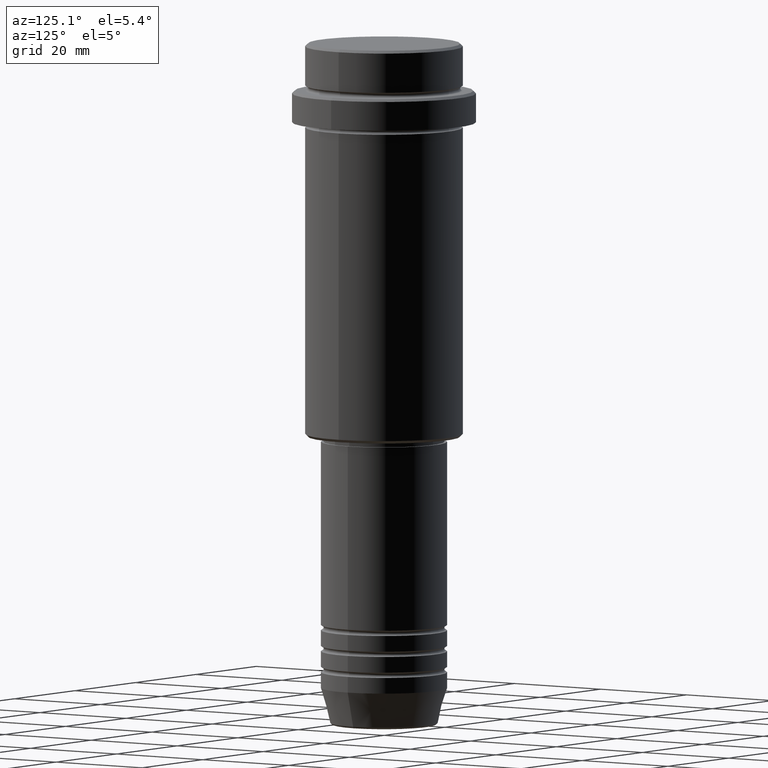
[diagram: clean part render]
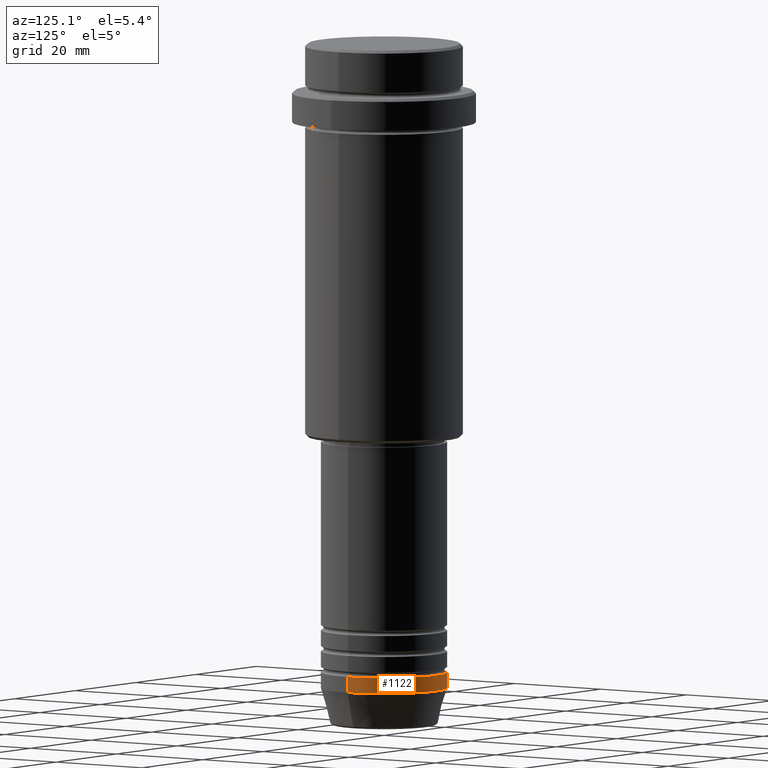
[diagram: same view with one face highlighted and labeled with its STEP entity id]
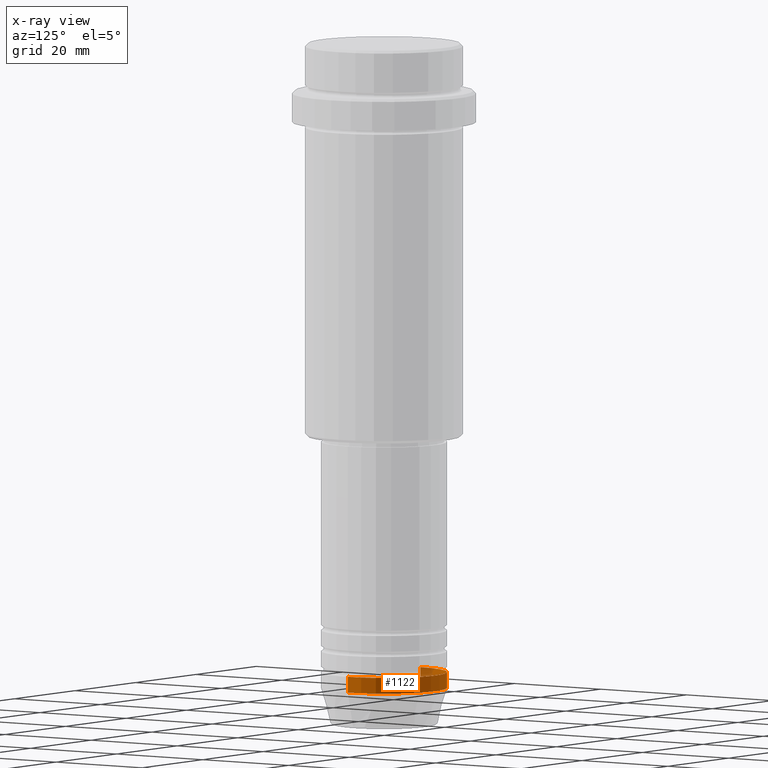
[diagram: x-ray of the same camera — body ghosted, the highlighted face saturated]
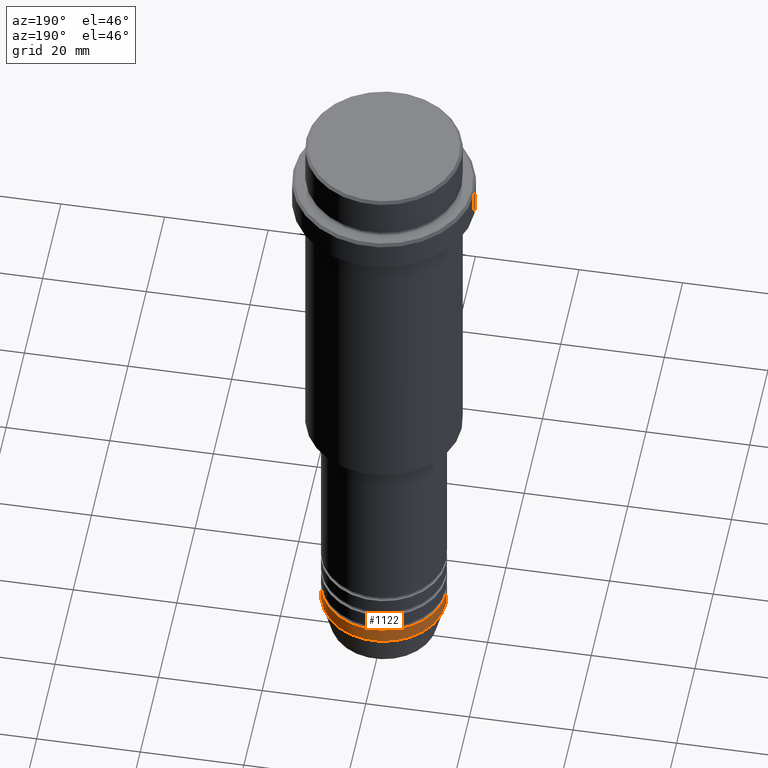
[diagram: same view with one face highlighted and labeled with its STEP entity id]
A machine part, auxiliary view. The second image highlights one B-rep face of the part: STEP entity #1122.
The next image is the same camera in x-ray: the body ghosted, the highlighted face saturated — about 6% of this face is hidden behind the body in this view.
A second angle (auxiliary view) of the same face is appended — the face is thin or edge-on in the first view.
In plain terms, the highlighted cylindrical surface (partial cylindrical patch) has radius 12 mm, axis along (-0, -0, 1).
Its self-contained STEP definition (entity closure, byte-faithful):
#69 = AXIS2_PLACEMENT_3D ( 'NONE', #941, #166, #604 ) ;
#87 = ORIENTED_EDGE ( 'NONE', *, *, #403, .F. ) ;
#95 = DIRECTION ( 'NONE',  ( -0.000000000000000000, -0.000000000000000000, 1.000000000000000000 ) ) ;
#152 = ORIENTED_EDGE ( 'NONE', *, *, #171, .T. ) ;
#164 = DIRECTION ( 'NONE',  ( 1.000000000000000000, 0.000000000000000000, 0.000000000000000000 ) ) ;
#166 = DIRECTION ( 'NONE',  ( -0.000000000000000000, -0.000000000000000000, 1.000000000000000000 ) ) ;
#171 = EDGE_CURVE ( 'NONE', #1378, #384, #495, .T. ) ;
#194 = ORIENTED_EDGE ( 'NONE', *, *, #1333, .F. ) ;
#296 = DIRECTION ( 'NONE',  ( -0.000000000000000000, -0.000000000000000000, 1.000000000000000000 ) ) ;
#384 = VERTEX_POINT ( 'NONE', #1394 ) ;
#396 = CARTESIAN_POINT ( 'NONE',  ( 12.00000000000000000, 0.000000000000000000, 0.000000000000000000 ) ) ;
#403 = EDGE_CURVE ( 'NONE', #1378, #532, #496, .T. ) ;
#455 = DIRECTION ( 'NONE',  ( -0.000000000000000000, -0.000000000000000000, 1.000000000000000000 ) ) ;
#470 = CARTESIAN_POINT ( 'NONE',  ( 0.000000000000000000, 0.000000000000000000, 0.000000000000000000 ) ) ;
#481 = CARTESIAN_POINT ( 'NONE',  ( 12.00000000000000000, 0.000000000000000000, -123.0000000000000000 ) ) ;
#495 = CIRCLE ( 'NONE', #69, 12.00000000000000000 ) ;
#496 = LINE ( 'NONE', #396, #961 ) ;
#497 = FACE_OUTER_BOUND ( 'NONE', #1135, .T. ) ;
#532 = VERTEX_POINT ( 'NONE', #579 ) ;
#579 = CARTESIAN_POINT ( 'NONE',  ( 12.00000000000000000, 0.000000000000000000, -120.0000000000000000 ) ) ;
#589 = DIRECTION ( 'NONE',  ( -0.000000000000000000, -0.000000000000000000, 1.000000000000000000 ) ) ;
#604 = DIRECTION ( 'NONE',  ( 1.000000000000000000, 0.000000000000000000, 0.000000000000000000 ) ) ;
#605 = AXIS2_PLACEMENT_3D ( 'NONE', #1364, #296, #1048 ) ;
#676 = ORIENTED_EDGE ( 'NONE', *, *, #1106, .T. ) ;
#717 = CARTESIAN_POINT ( 'NONE',  ( -12.00000000000000000, 1.469576158976823947E-15, -120.0000000000000000 ) ) ;
#745 = CIRCLE ( 'NONE', #605, 12.00000000000000000 ) ;
#785 = VECTOR ( 'NONE', #455, 1000.000000000000000 ) ;
#941 = CARTESIAN_POINT ( 'NONE',  ( 0.000000000000000000, 0.000000000000000000, -123.0000000000000000 ) ) ;
#948 = CARTESIAN_POINT ( 'NONE',  ( -12.00000000000000000, 1.469576158976823947E-15, 0.000000000000000000 ) ) ;
#961 = VECTOR ( 'NONE', #95, 1000.000000000000000 ) ;
#1048 = DIRECTION ( 'NONE',  ( 1.000000000000000000, 0.000000000000000000, 0.000000000000000000 ) ) ;
#1059 = LINE ( 'NONE', #948, #785 ) ;
#1106 = EDGE_CURVE ( 'NONE', #384, #1116, #1059, .T. ) ;
#1116 = VERTEX_POINT ( 'NONE', #717 ) ;
#1122 = ADVANCED_FACE ( 'NONE', ( #497 ), #1245, .T. ) ;
#1135 = EDGE_LOOP ( 'NONE', ( #152, #676, #194, #87 ) ) ;
#1245 = CYLINDRICAL_SURFACE ( 'NONE', #1268, 12.00000000000000000 ) ;
#1268 = AXIS2_PLACEMENT_3D ( 'NONE', #470, #589, #164 ) ;
#1333 = EDGE_CURVE ( 'NONE', #532, #1116, #745, .T. ) ;
#1364 = CARTESIAN_POINT ( 'NONE',  ( 0.000000000000000000, 0.000000000000000000, -120.0000000000000000 ) ) ;
#1378 = VERTEX_POINT ( 'NONE', #481 ) ;
#1394 = CARTESIAN_POINT ( 'NONE',  ( -12.00000000000000000, 1.469576158976823947E-15, -123.0000000000000000 ) ) ;